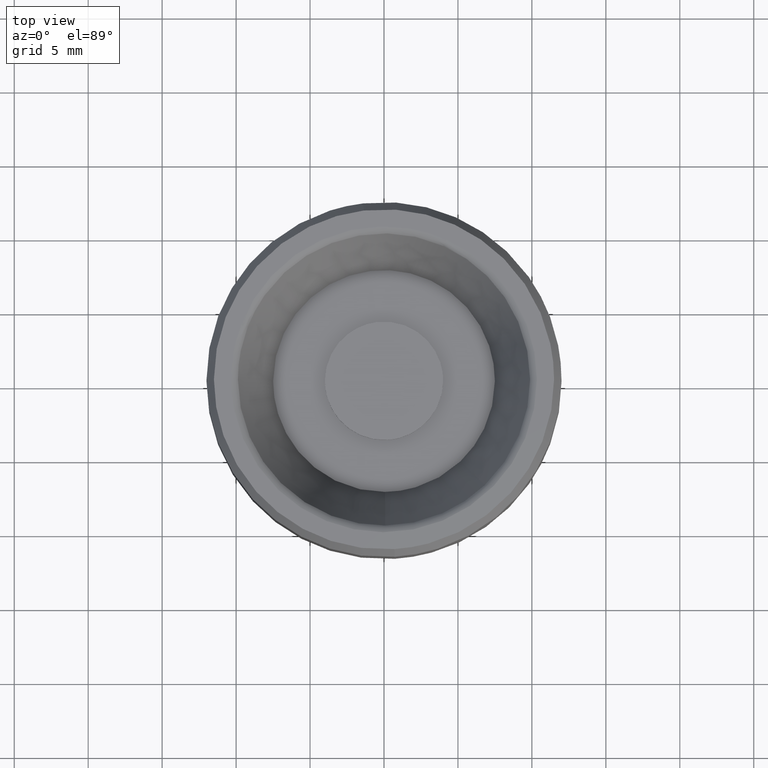
[diagram: clean part render]
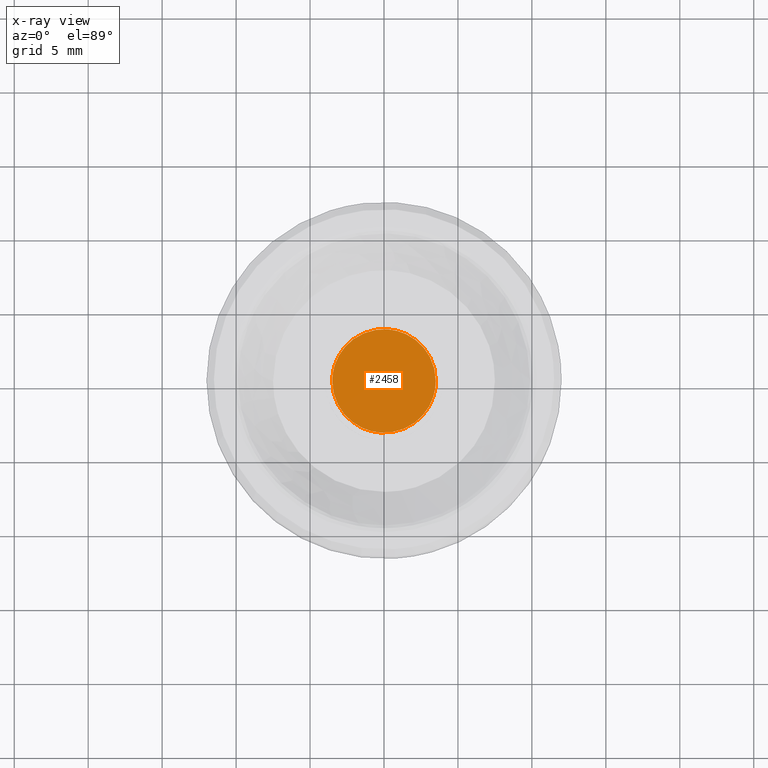
[diagram: x-ray — body ghosted, one internal face saturated and labeled with its STEP entity id]
A machine part, top view, then the same camera in x-ray: the body is ghosted and one INTERNAL B-rep face — a face not visible from any outside direction — is saturated and labeled: STEP entity #2458.
In plain terms, the highlighted face is a freeform B-spline surface patch.
Its self-contained STEP definition (entity closure, byte-faithful):
#1077=CARTESIAN_POINT('',(-3.500000000000000,0.0,9.500000000000000));
#1078=VERTEX_POINT('',#1077);
#1079=CARTESIAN_POINT('',(-0.274603501348687,-3.489210930430525,9.500000000000014));
#1080=VERTEX_POINT('',#1079);
#1081=CARTESIAN_POINT('',(-3.500000000000000,0.0,9.500000000000000));
#1082=CARTESIAN_POINT('',(-3.499999999999999,-3.235369821531854,9.500000000000000));
#1083=CARTESIAN_POINT('',(-0.274603501348687,-3.489210930430525,9.500000000000014));
#1091=(BOUNDED_CURVE()B_SPLINE_CURVE(2,(#1081,#1082,#1083),.UNSPECIFIED.,.F.,.U.)B_SPLINE_CURVE_WITH_KNOTS((3,3),(0.0,0.236331464416993),.UNSPECIFIED.)CURVE()GEOMETRIC_REPRESENTATION_ITEM()RATIONAL_B_SPLINE_CURVE((1.0,0.723120466720040,0.969723697977253))REPRESENTATION_ITEM(''));
#1092=EDGE_CURVE('',#1078,#1080,#1091,.T.);
#1133=CARTESIAN_POINT('',(0.274603501348688,3.489210930430525,9.500000000000014));
#1134=VERTEX_POINT('',#1133);
#1140=CARTESIAN_POINT('',(0.274603501348688,3.489210930430525,9.500000000000014));
#1141=CARTESIAN_POINT('',(0.137513699942294,3.500000000000001,9.500000000000002));
#1142=CARTESIAN_POINT('',(0.0,3.500000000000000,9.500000000000000));
#1143=CARTESIAN_POINT('',(-3.500000000000000,3.500000000000000,9.500000000000000));
#1144=CARTESIAN_POINT('',(-3.500000000000000,0.0,9.500000000000000));
#1152=(BOUNDED_CURVE()B_SPLINE_CURVE(2,(#1140,#1141,#1142,#1143,#1144),.UNSPECIFIED.,.F.,.U.)B_SPLINE_CURVE_WITH_KNOTS((3,2,3),(0.736331464416993,0.750000000000000,1.0),.UNSPECIFIED.)CURVE()GEOMETRIC_REPRESENTATION_ITEM()RATIONAL_B_SPLINE_CURVE((0.969723697977253,0.983986314466508,1.0,0.707106781186547,1.0))REPRESENTATION_ITEM(''));
#1153=EDGE_CURVE('',#1134,#1078,#1152,.T.);
#1176=CARTESIAN_POINT('',(3.500000000000000,0.0,9.500000000000000));
#1177=VERTEX_POINT('',#1176);
#1178=CARTESIAN_POINT('',(-0.274603501348687,-3.489210930430525,9.500000000000014));
#1179=CARTESIAN_POINT('',(-0.137513699942294,-3.500000000000000,9.500000000000000));
#1180=CARTESIAN_POINT('',(0.0,-3.500000000000000,9.500000000000000));
#1181=CARTESIAN_POINT('',(3.500000000000000,-3.500000000000000,9.500000000000000));
#1182=CARTESIAN_POINT('',(3.500000000000000,0.0,9.500000000000000));
#1190=(BOUNDED_CURVE()B_SPLINE_CURVE(2,(#1178,#1179,#1180,#1181,#1182),.UNSPECIFIED.,.F.,.U.)B_SPLINE_CURVE_WITH_KNOTS((3,2,3),(0.236331464416993,0.250000000000000,0.500000000000000),.UNSPECIFIED.)CURVE()GEOMETRIC_REPRESENTATION_ITEM()RATIONAL_B_SPLINE_CURVE((0.969723697977253,0.983986314466508,1.0,0.707106781186547,1.0))REPRESENTATION_ITEM(''));
#1191=EDGE_CURVE('',#1080,#1177,#1190,.T.);
#1193=CARTESIAN_POINT('',(3.500000000000000,0.0,9.500000000000000));
#1194=CARTESIAN_POINT('',(3.500000000000000,3.235369821531851,9.499999999999998));
#1195=CARTESIAN_POINT('',(0.274603501348688,3.489210930430525,9.500000000000014));
#1203=(BOUNDED_CURVE()B_SPLINE_CURVE(2,(#1193,#1194,#1195),.UNSPECIFIED.,.F.,.U.)B_SPLINE_CURVE_WITH_KNOTS((3,3),(0.500000000000000,0.736331464416993),.UNSPECIFIED.)CURVE()GEOMETRIC_REPRESENTATION_ITEM()RATIONAL_B_SPLINE_CURVE((1.0,0.723120466720040,0.969723697977253))REPRESENTATION_ITEM(''));
#1204=EDGE_CURVE('',#1177,#1134,#1203,.T.);
#2447=CARTESIAN_POINT('',(-3.849649986432642,3.848581897387904,9.500000000000000));
#2448=CARTESIAN_POINT('',(3.849650174187273,3.848581897387904,9.500000000000000));
#2449=CARTESIAN_POINT('',(-3.849649986432642,-3.848581834803027,9.500000000000000));
#2450=CARTESIAN_POINT('',(3.849650174187273,-3.848581834803027,9.500000000000000));
#2451=B_SPLINE_SURFACE_WITH_KNOTS('',1,1,((#2447,#2449),(#2448,#2450)),.UNSPECIFIED.,.F.,.F.,.U.,(2,2),(2,2),(0.0,7.699300160619915),(0.0,7.697163732190931),.UNSPECIFIED.);
#2452=ORIENTED_EDGE('',*,*,#1153,.F.);
#2453=ORIENTED_EDGE('',*,*,#1204,.F.);
#2454=ORIENTED_EDGE('',*,*,#1191,.F.);
#2455=ORIENTED_EDGE('',*,*,#1092,.F.);
#2456=EDGE_LOOP('',(#2452,#2453,#2454,#2455));
#2457=FACE_OUTER_BOUND('',#2456,.T.);
#2458=ADVANCED_FACE('',(#2457),#2451,.T.);